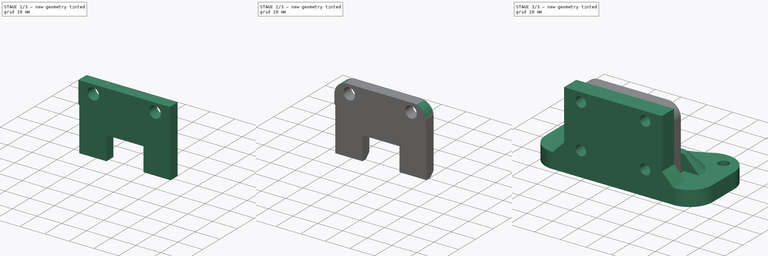
[diagram: build sequence overview — one tinted view per stage of 3, left to right]
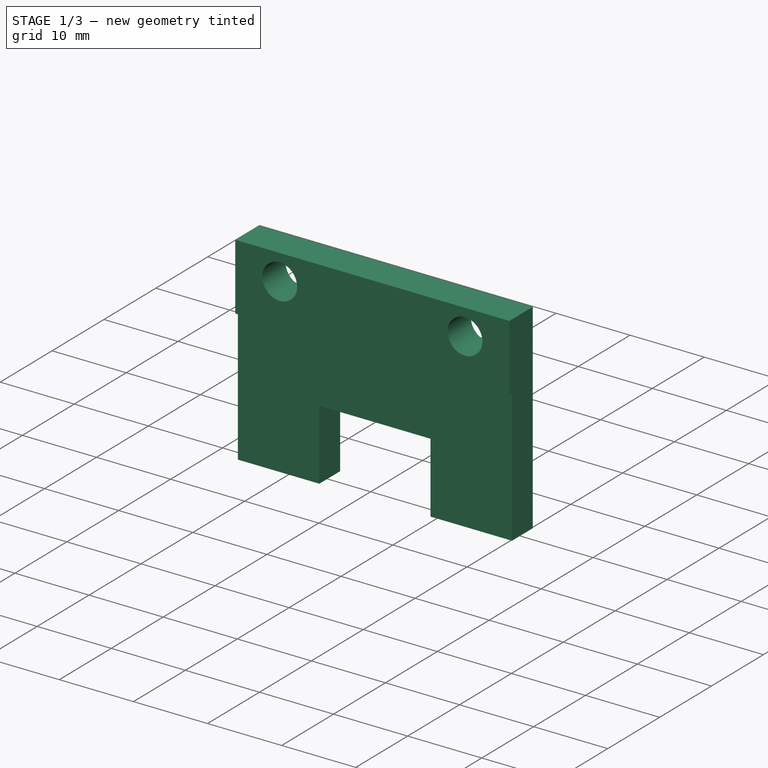
[diagram: stage 1 of 3 — iso view after this stage's code; geometry added in this stage tinted green]
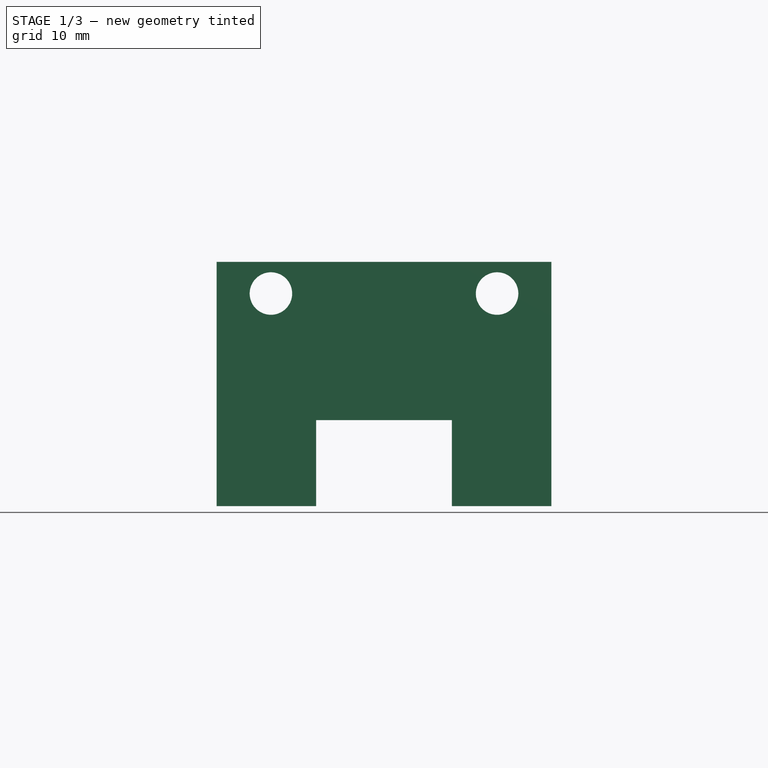
[diagram: stage 1 of 3 — front view after this stage's code; geometry added in this stage tinted green]
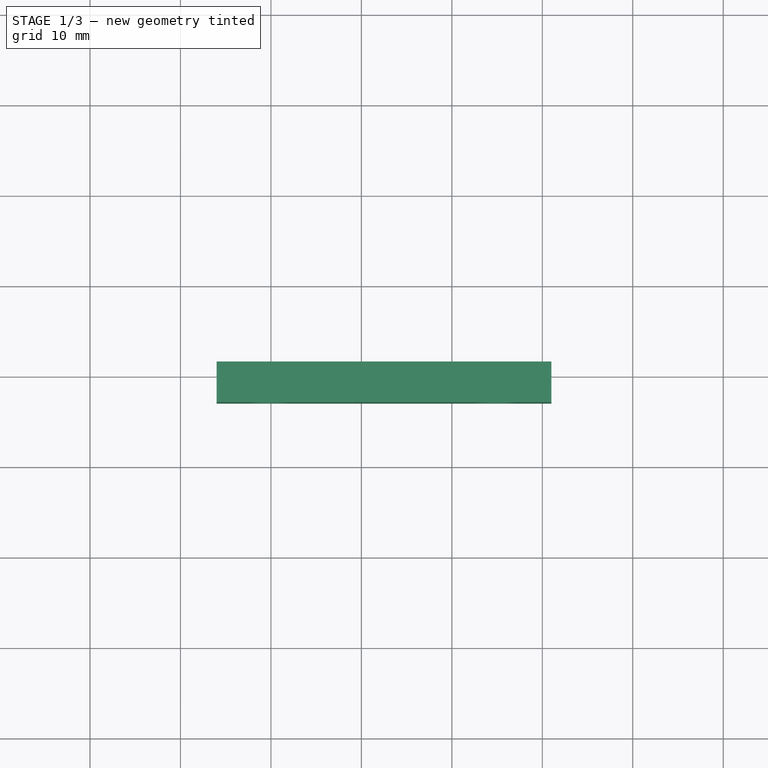
[diagram: stage 1 of 3 — top view after this stage's code; geometry added in this stage tinted green]
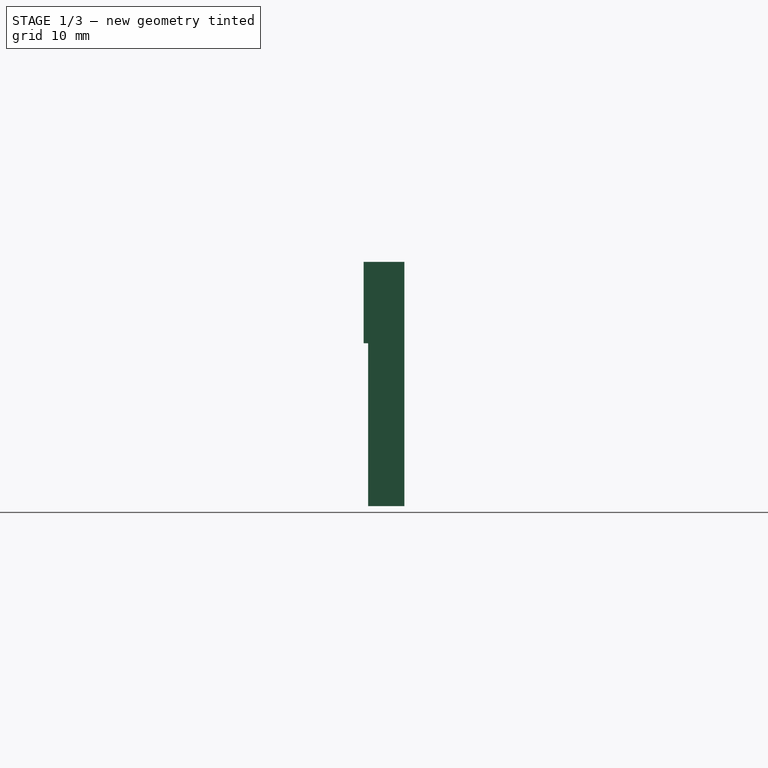
[diagram: stage 1 of 3 — right view after this stage's code; geometry added in this stage tinted green]
FCSTD DOCUMENT  (FreeCAD 0.17R11850 (Git))
Label: cont_belt_clamp
License: All rights reserved
LicenseURL: http://en.wikipedia.org/wiki/All_rights_reserved
objects: Sketcher::SketchObject×4, PartDesign::Pocket×3, PartDesign::Chamfer×2, Part::FeaturePython×1, PartDesign::Pad×1, PartDesign::Fillet×1, PartDesign::Body×1, Part::Feature×1
note: 18 computed .brp shape members not serialized (recipe doc carries the construction recipe); baked Part::Feature solids carry a one-line shape summary decoded from their .brp

FEATURE [Sketcher::SketchObject] Sketch
  MapMode = 5
  Support = -> [XY_Plane]
  sketch-geometry (4):
    g0: LineSegment StartX=14 StartY=11.25 StartZ=0 EndX=51 EndY=11.25 EndZ=0
    g1: LineSegment StartX=51 StartY=11.25 StartZ=0 EndX=51 EndY=6.75 EndZ=0
    g2: LineSegment StartX=51 StartY=6.75 StartZ=0 EndX=14 EndY=6.75 EndZ=0
    g3: LineSegment StartX=14 StartY=6.75 StartZ=0 EndX=14 EndY=11.25 EndZ=0
  constraints (12):
    c: Coincident(g0,g1)
    c: Coincident(g1,g2)
    c: Coincident(g2,g3)
    c: Coincident(g3,g0)
    c: Horizontal(g0)
    c: Horizontal(g2)
    c: Vertical(g1)
    c: Vertical(g3)
    c: DistanceX(g2) = 14
    c: DistanceY(g2) = 6.75
    c: DistanceX(g0,g0) = 37
    c: DistanceY(g1,g1) = 4.5
FEATURE [PartDesign::Pad] Pad
  Length = 27
  Length2 = 100
  Profile = -> Sketch
  Type = 0
FEATURE [Sketcher::SketchObject] Sketch001
  ExternalGeometry = -> [Pad]
  MapMode = 5
  Placement = pos=(0,11.25,0) rot=(0,0.707107,0.707107;3.14159rad)
  Support = -> [Pad]
  sketch-geometry (7):
    g0: Circle CenterX=-45 CenterY=23.5 CenterZ=0 NormalX=0 NormalY=0 NormalZ=1 Radius=2.35
    g1: Circle CenterX=-20 CenterY=23.5 CenterZ=0 NormalX=0 NormalY=0 NormalZ=1 Radius=2.35
    g2: LineSegment StartX=-40 StartY=0 StartZ=0 EndX=-25 EndY=0 EndZ=0
    g3: LineSegment StartX=-25 StartY=0 StartZ=0 EndX=-25 EndY=9.5 EndZ=0
    g4: LineSegment StartX=-25 StartY=9.5 StartZ=0 EndX=-40 EndY=9.5 EndZ=0
    g5: LineSegment StartX=-40 StartY=9.5 StartZ=0 EndX=-40 EndY=0 EndZ=0
    g6: LineSegment [constr] StartX=-45 StartY=23.5 StartZ=0 EndX=-20 EndY=23.5 EndZ=0
  constraints (20):
    c: Coincident(g2,g3)
    c: Coincident(g3,g4)
    c: Coincident(g4,g5)
    c: Coincident(g5,g2)
    c: Horizontal(g2)
    c: Horizontal(g4)
    c: Vertical(g3)
    c: Vertical(g5)
    c: PointOnObject(g2,g-1)
    c: DistanceX(g2,g-4) = 11
    c: DistanceX(g-3,g2) = 11
    c: DistanceY(g3,g3) = 9.5
    c: Horizontal(g6)
    c: Coincident(g6,g0)
    c: Coincident(g1,g6)
    c: DistanceX(g0,g-3) = -6
    c: DistanceY(g0,g-3) = -23.5
    c: DistanceX(g6,g6) = 25
    c: Radius(g1) = 2.35
    c: Equal(g1,g0)
FEATURE [PartDesign::Pocket] Pocket
  BaseFeature = -> Pad
  Length = 5
  Profile = -> Sketch001
  Type = 1
FEATURE [Sketcher::SketchObject] Sketch002
  ExternalGeometry = -> [Pocket]
  MapMode = 5
  Placement = pos=(0,6.75,0) rot=(1,0,0;1.5708rad)
  Support = -> [Pocket]
  sketch-geometry (4):
    g0: LineSegment StartX=14 StartY=0 StartZ=0 EndX=51 EndY=0 EndZ=0
    g1: LineSegment StartX=51 StartY=0 StartZ=0 EndX=51 EndY=18 EndZ=0
    g2: LineSegment StartX=51 StartY=18 StartZ=0 EndX=14 EndY=18 EndZ=0
    g3: LineSegment StartX=14 StartY=18 StartZ=0 EndX=14 EndY=0 EndZ=0
  constraints (11):
    c: Coincident(g0,g1)
    c: Coincident(g1,g2)
    c: Coincident(g2,g3)
    c: Coincident(g3,g0)
    c: Horizontal(g0)
    c: Horizontal(g2)
    c: Vertical(g1)
    c: Vertical(g3)
    c: PointOnObject(g1,g-4)
    c: Coincident(g0,g-3)
    c: DistanceY(g3,g3) = 18
FEATURE [PartDesign::Pocket] Pocket001
  BaseFeature = -> Pocket
  Length = 0.5
  Profile = -> Sketch002
  Type = 0
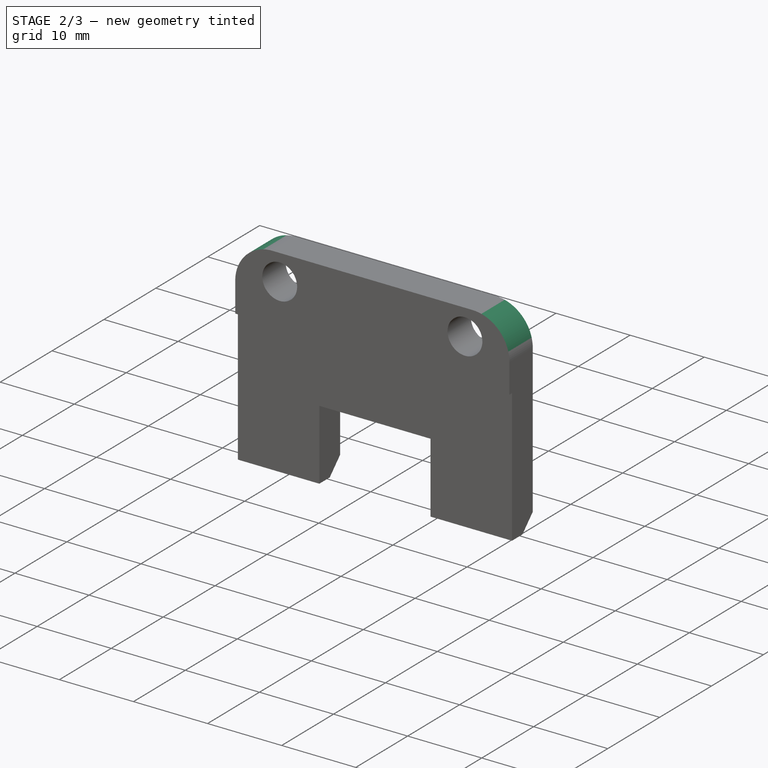
[diagram: stage 2 of 3 — iso view after this stage's code; geometry added in this stage tinted green]
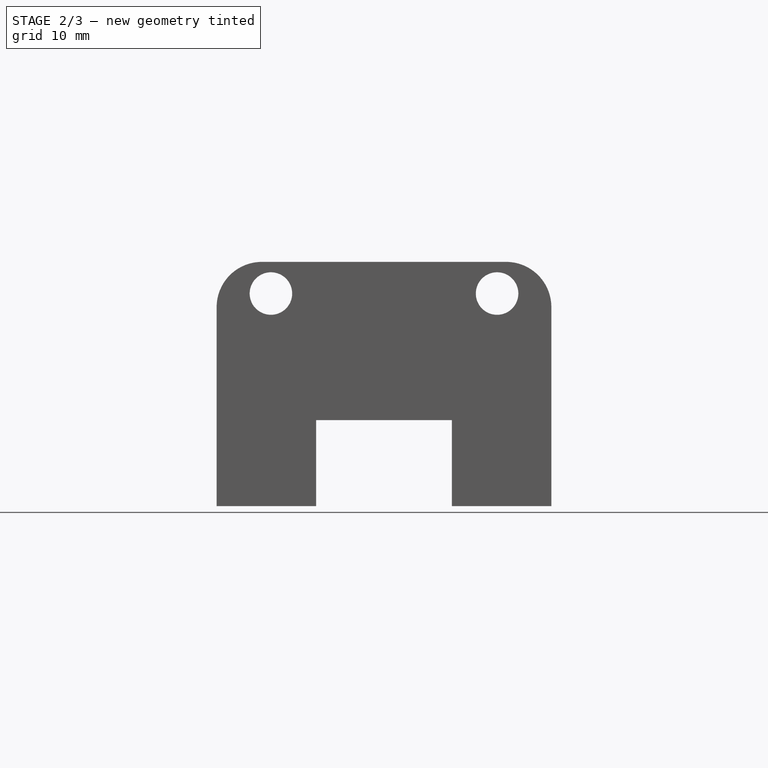
[diagram: stage 2 of 3 — front view after this stage's code; geometry added in this stage tinted green]
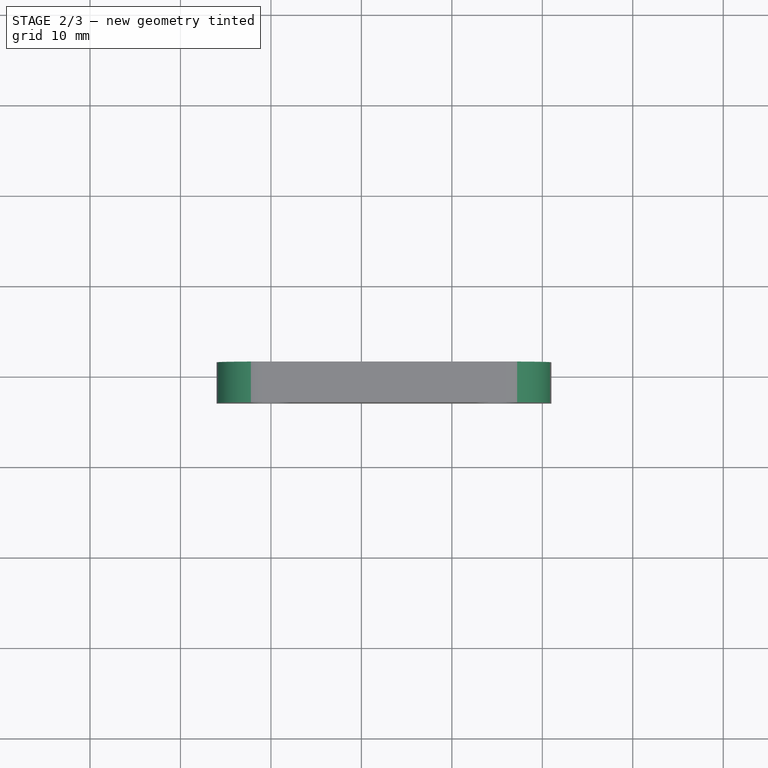
[diagram: stage 2 of 3 — top view after this stage's code; geometry added in this stage tinted green]
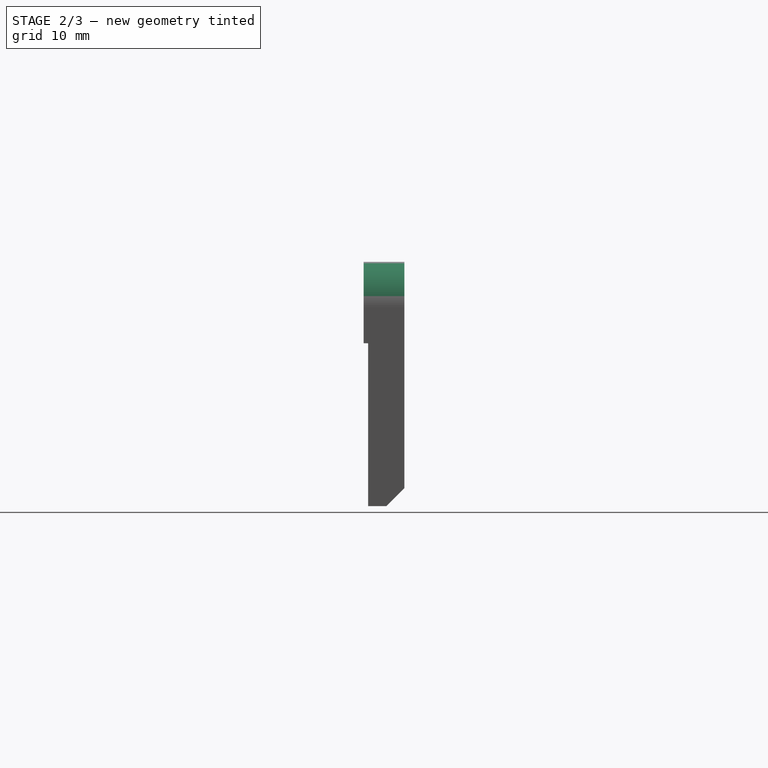
[diagram: stage 2 of 3 — right view after this stage's code; geometry added in this stage tinted green]
FEATURE [PartDesign::Chamfer] Chamfer
  Base = -> Pocket001 [Edge5,Edge1]
  BaseFeature = -> Pocket001
  Size = 2
FEATURE [PartDesign::Fillet] Fillet
  Base = -> Chamfer [Edge27,Edge22]
  BaseFeature = -> Chamfer
  Radius = 5
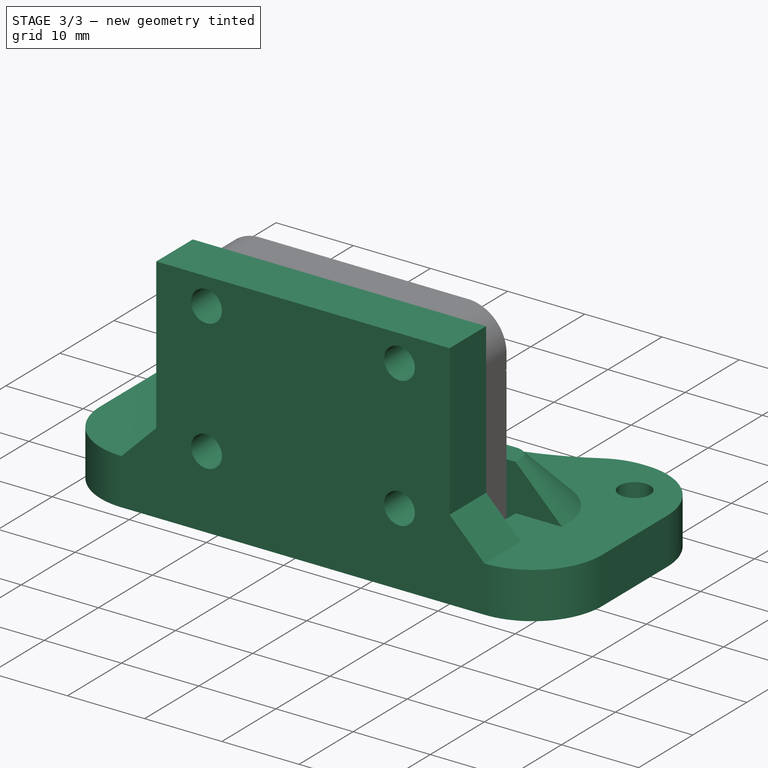
[diagram: stage 3 of 3 — iso view after this stage's code; geometry added in this stage tinted green]
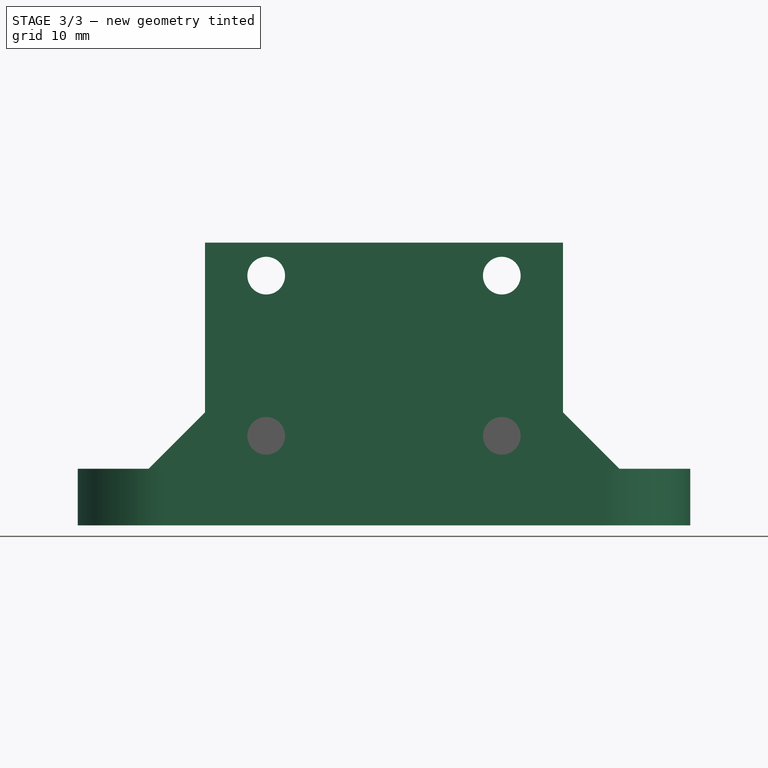
[diagram: stage 3 of 3 — front view after this stage's code; geometry added in this stage tinted green]
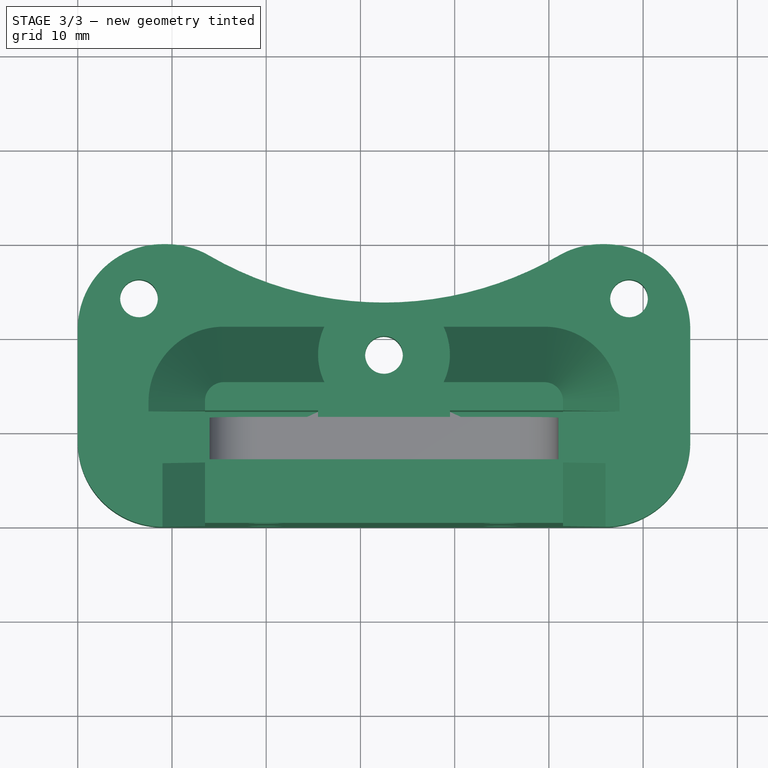
[diagram: stage 3 of 3 — top view after this stage's code; geometry added in this stage tinted green]
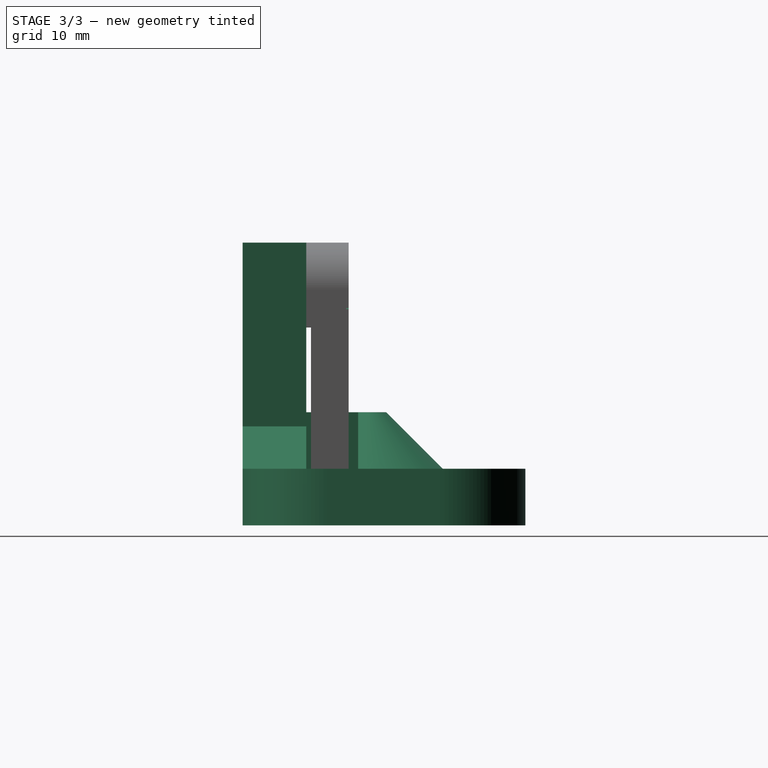
[diagram: stage 3 of 3 — right view after this stage's code; geometry added in this stage tinted green]
FEATURE [Part::FeaturePython] cont_belt_mount_01  # a2plus imported part (geometry in sourceFile) (typed FeaturePython)
  Placement = pos=(0,0,-3) rot=(0,0,1;0rad)
  fixedPosition = true
  sourceFile = <userpath>/Projects/taz-quiver/Production_parts/Printed_parts/Y/Y_belt_mount/cont_belt_mount.fcstd
  timeLastImport = 1.51622e+09
  updateColors = true
FEATURE [PartDesign::Chamfer] Chamfer001
  Base = -> Fillet [Edge44,Edge42]
  BaseFeature = -> Fillet
  Size = 1
FEATURE [Sketcher::SketchObject] Sketch003
  ExternalGeometry = -> [Chamfer001]
  MapMode = 5
  Placement = pos=(0,11.25,0) rot=(0,0.707107,0.707107;3.14159rad)
  Support = -> [Chamfer001]
  sketch-geometry (10):
    g0: LineSegment [constr] StartX=-51 StartY=20 StartZ=0 EndX=-45 EndY=23.5 EndZ=0
    g1: LineSegment [constr] StartX=-14 StartY=20 StartZ=0 EndX=-20 EndY=23.5 EndZ=0
    g2: LineSegment StartX=-51.0504 StartY=20.0285 StartZ=0 EndX=-47.0546 EndY=22.3594 EndZ=0
    g3: LineSegment StartX=-47.0546 StartY=22.3594 StartZ=0 EndX=-47.0042 EndY=22.273 EndZ=0
    g4: LineSegment StartX=-47.0042 StartY=22.273 StartZ=0 EndX=-51 EndY=19.9421 EndZ=0
    g5: LineSegment StartX=-51 StartY=19.9421 StartZ=0 EndX=-51.0504 EndY=20.0285 EndZ=0
    g6: LineSegment StartX=-17.9958 StartY=22.273 StartZ=0 EndX=-14 EndY=19.9421 EndZ=0
    g7: LineSegment StartX=-14 StartY=19.9421 StartZ=0 EndX=-13.9496 EndY=20.0285 EndZ=0
    g8: LineSegment StartX=-13.9496 StartY=20.0285 StartZ=0 EndX=-17.9454 EndY=22.3594 EndZ=0
    g9: LineSegment StartX=-17.9454 StartY=22.3594 StartZ=0 EndX=-17.9958 EndY=22.273 EndZ=0
  constraints (26):
    c: PointOnObject(g0,g-5)
    c: Coincident(g0,g-3)
    c: PointOnObject(g1,g-7)
    c: Coincident(g1,g-4)
    c: DistanceY(g0,g-8) = 2
    c: Horizontal(g1,g0)
    c: PointOnObject(g2,g-3)
    c: Coincident(g2,g3)
    c: Coincident(g3,g4)
    c: Coincident(g4,g5)
    c: Coincident(g5,g2)
    c: Symmetric(g2,g3,g0)
    c: Symmetric(g2,g4,g0)
    c: Equal(g5,g3)
    c: PointOnObject(g4,g-5)
    c: Distance(g5) = 0.1
    c: PointOnObject(g6,g-4)
    c: PointOnObject(g6,g-7)
    c: Coincident(g6,g7)
    c: Coincident(g7,g8)
    c: Coincident(g8,g9)
    c: Coincident(g6,g9)
    c: Symmetric(g6,g8,g1)
    c: Symmetric(g7,g6,g1)
    c: Equal(g7,g9)
    c: Distance(g7) = 0.1
FEATURE [PartDesign::Pocket] Pocket002
  BaseFeature = -> Chamfer001
  Length = 0.25
  Profile = -> Sketch003
  Type = 0
FEATURE [PartDesign::Body] Body
  Group = -> [Sketch,Pad,Sketch001,Pocket,Sketch002,Pocket001,Chamfer,Fillet,Chamfer001,Sketch003,Pocket002]
  Origin = -> Origin
  Tip = -> Pocket002
FEATURE [Part::Feature] Pocket002001  label="Pocket003"
  shape: bbox 37 x 4.5 x 27 mm, 26 faces (baked)
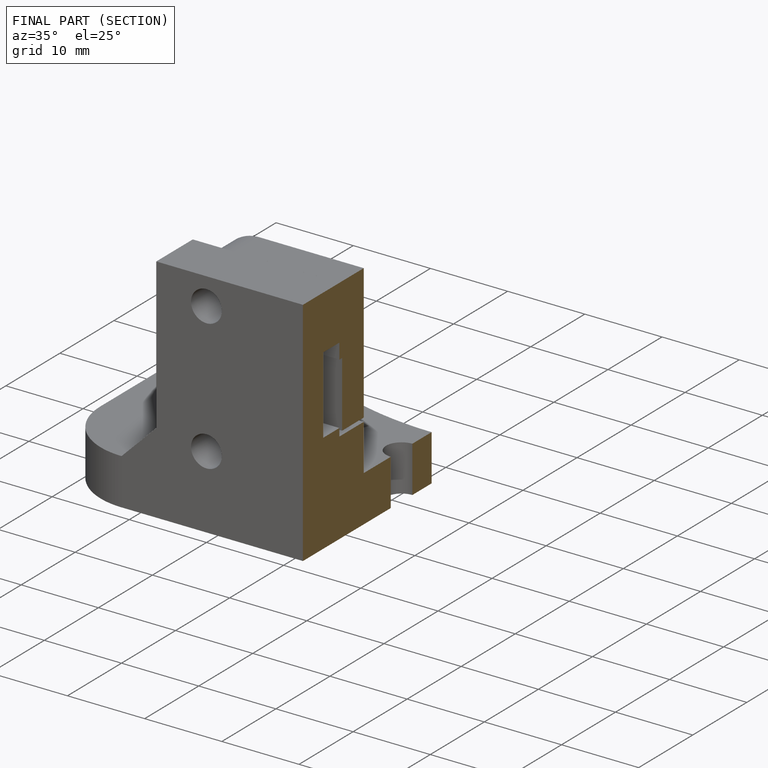
[diagram: finished part — half-section view (interior)]
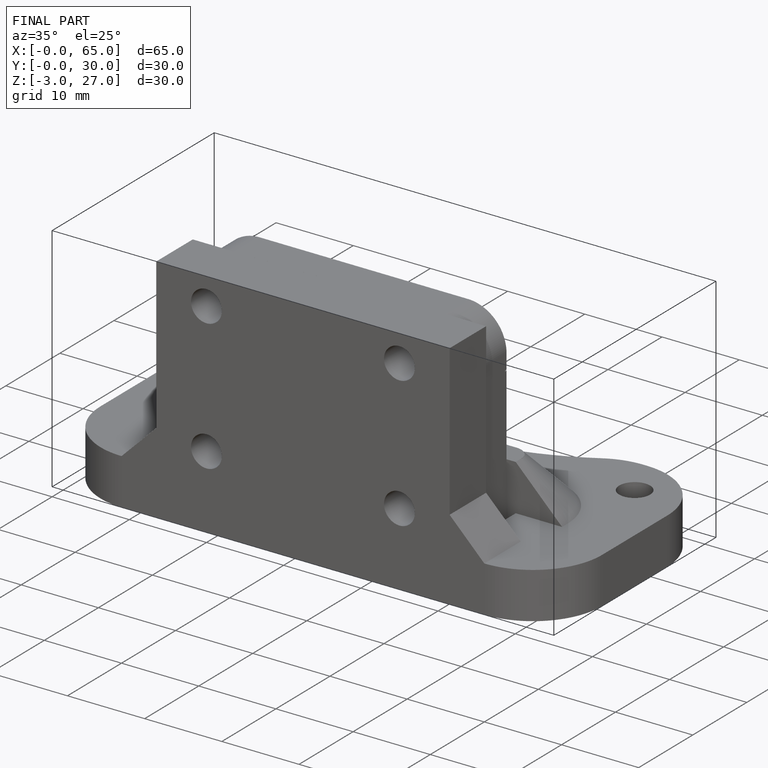
[diagram: finished part — iso view with bounding-box wireframe]
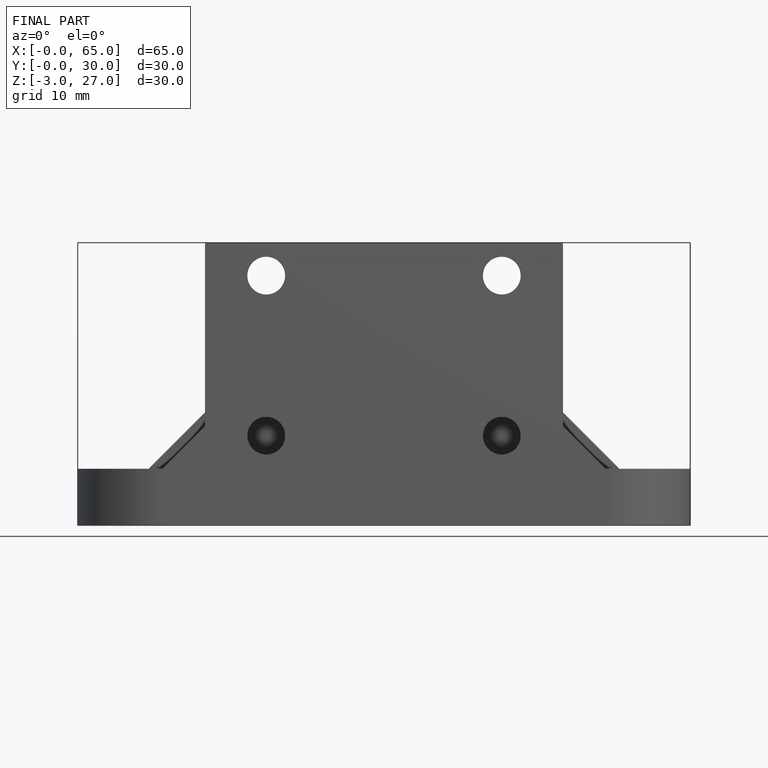
[diagram: finished part — front view with bounding-box wireframe]
